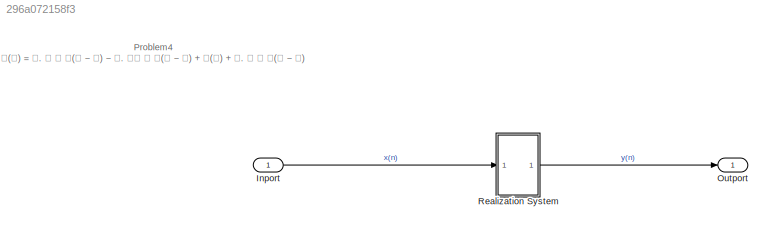
MODEL slx_296a072158f3
KIND model
CONFIG AbsTol = auto
CONFIG EnableMultiTasking = off
CONFIG FixedStep = auto
CONFIG MaxStep = auto
CONFIG MinStep = auto
CONFIG RelTol = 1e-3
CONFIG SampleTimeConstraint = Unconstrained
CONFIG SolverName = VariableStepAuto
CONFIG StartTime = 0.0
CONFIG StopTime = 10.0
BLOCK [Inport] Inport
BLOCK [Outport] Outport
BLOCK [ModelReference] Realization System
  ModelNameDialog = Realization_System
  ModelReferenceVersion = 1.2
  Ports = [1, 1]
ANNOTATION (root): Problem4 𝐲(𝐧) = 𝟎. 𝟓 ∗ 𝐲(𝐧 − 𝟏) − 𝟎. 𝟐𝟓 ∗ 𝐲(𝐧 − 𝟐) + 𝐱(𝐧) + 𝟎. 𝟒 ∗ 𝐱(𝐧 − 𝟏)
LINE Inport:1 -> Realization System:1
LINE Realization System:1 -> Outport:1
